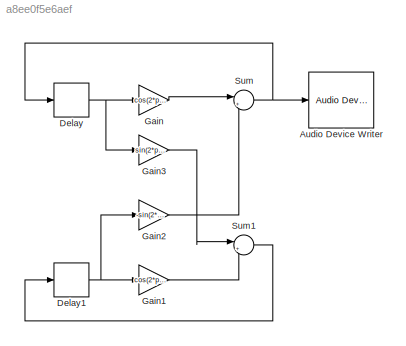
MODEL slx_a8ee0f5e6aef
KIND model
CONFIG AbsTol = auto
CONFIG EnableMultiTasking = off
CONFIG FixedStep = auto
CONFIG MaxStep = auto
CONFIG MinStep = auto
CONFIG RelTol = 1e-3
CONFIG SampleTimeConstraint = Unconstrained
CONFIG SolverName = VariableStepAuto
CONFIG StartTime = 0.0
CONFIG StopTime = 5
BLOCK [Reference] Audio Device Writer  REF=dspsnks4/Audio Device
Writer
  LibrarySourceBlock = audiosinks/Audio Device\nWriter
  SourceBlock = dspsnks4/Audio Device\nWriter
  SourceType = Audio Device Writer
BLOCK [Delay] Delay
  DelayLength = 1
  InputPortMap = u0
  SampleTime = 1/10000
BLOCK [Delay] Delay1
  DelayLength = 1
  InitialCondition = 1
  InputPortMap = u0
  SampleTime = 1/10000
BLOCK [Gain] Gain
  Gain = cos(2*pi*fd)
BLOCK [Gain] Gain1
  Gain = cos(2*pi*fd)
BLOCK [Gain] Gain2
  Gain = -sin(2*pi*fd)
BLOCK [Gain] Gain3
  Gain = sin(2*pi*fd)
BLOCK [Sum] Sum
  Inputs = |++
BLOCK [Sum] Sum1
  Inputs = |++
NET Delay1:1 -> Gain1:1, Gain2:1
NET Delay:1 -> Gain3:1, Gain:1
LINE Gain1:1 -> Sum1:2
LINE Gain2:1 -> Sum:2
LINE Gain3:1 -> Sum1:1
LINE Gain:1 -> Sum:1
LINE Sum1:1 -> Delay1:1
NET Sum:1 -> Audio Device Writer:1, Delay:1
note: NET lines group one-source signal fan-out (src -> all destinations, sorted); 1:1 wires keep LINE
